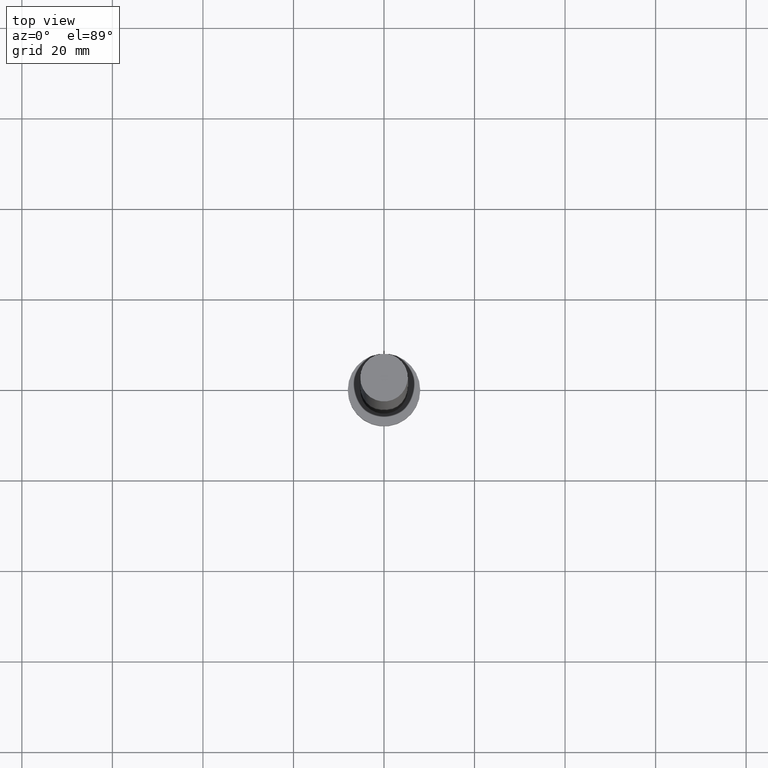
[diagram: clean part render]
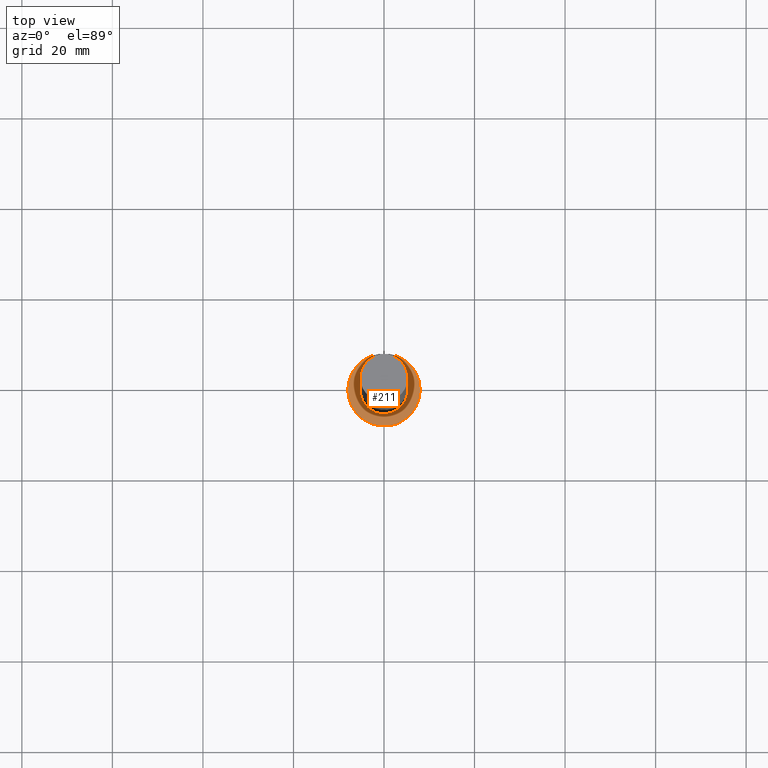
[diagram: same view with one face highlighted and labeled with its STEP entity id]
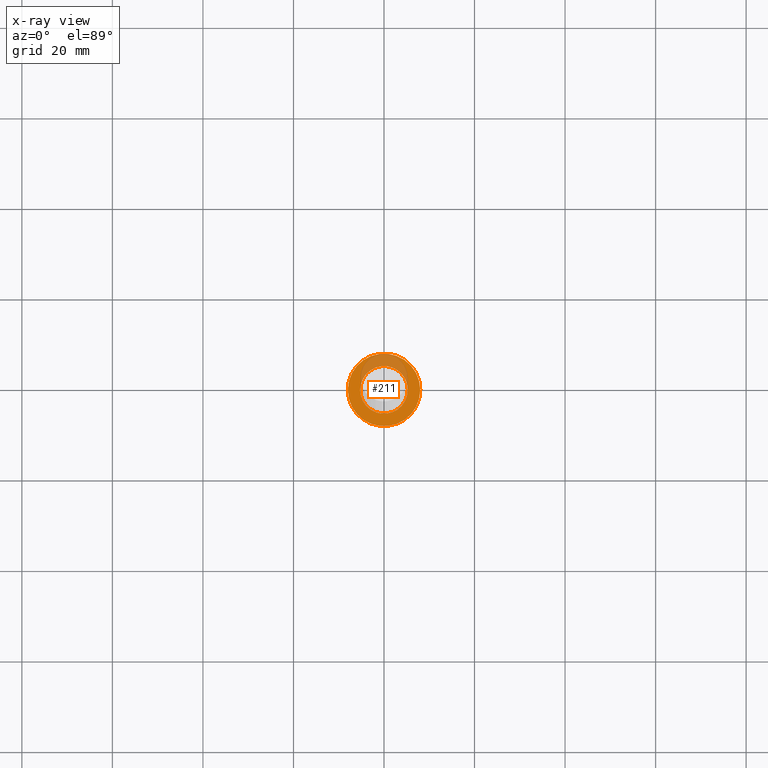
[diagram: x-ray of the same camera — body ghosted, the highlighted face saturated]
A machine part, top view. The second image highlights one B-rep face of the part: STEP entity #211.
The next image is the same camera in x-ray: the body ghosted, the highlighted face saturated — about 25% of this face is hidden behind the body in this view.
In plain terms, the highlighted planar face has unit normal (0, 0, 1).
Its self-contained STEP definition (entity closure, byte-faithful):
#2 = CARTESIAN_POINT ( 'NONE',  ( 8.000000000000000000, 9.797174393178825657E-16, 5.000000000000000000 ) ) ;
#10 = DIRECTION ( 'NONE',  ( 1.000000000000000000, 0.000000000000000000, -0.000000000000000000 ) ) ;
#11 = DIRECTION ( 'NONE',  ( 0.000000000000000000, 0.000000000000000000, 1.000000000000000000 ) ) ;
#15 = CIRCLE ( 'NONE', #152, 8.000000000000000000 ) ;
#22 = FACE_OUTER_BOUND ( 'NONE', #128, .T. ) ;
#27 = CIRCLE ( 'NONE', #181, 5.250000000000000888 ) ;
#28 = EDGE_CURVE ( 'NONE', #56, #54, #27, .T. ) ;
#46 = ORIENTED_EDGE ( 'NONE', *, *, #182, .T. ) ;
#47 = CARTESIAN_POINT ( 'NONE',  ( 0.000000000000000000, 0.000000000000000000, 5.000000000000000000 ) ) ;
#50 = AXIS2_PLACEMENT_3D ( 'NONE', #47, #11, #70 ) ;
#52 = DIRECTION ( 'NONE',  ( 1.000000000000000000, 0.000000000000000000, 0.000000000000000000 ) ) ;
#54 = VERTEX_POINT ( 'NONE', #219 ) ;
#56 = VERTEX_POINT ( 'NONE', #161 ) ;
#62 = ORIENTED_EDGE ( 'NONE', *, *, #82, .T. ) ;
#63 = DIRECTION ( 'NONE',  ( 0.000000000000000000, 0.000000000000000000, 1.000000000000000000 ) ) ;
#65 = VERTEX_POINT ( 'NONE', #2 ) ;
#70 = DIRECTION ( 'NONE',  ( 1.000000000000000000, 0.000000000000000000, 0.000000000000000000 ) ) ;
#82 = EDGE_CURVE ( 'NONE', #249, #65, #15, .T. ) ;
#83 = DIRECTION ( 'NONE',  ( 1.000000000000000000, 0.000000000000000000, 0.000000000000000000 ) ) ;
#86 = DIRECTION ( 'NONE',  ( 0.000000000000000000, 0.000000000000000000, 1.000000000000000000 ) ) ;
#89 = PLANE ( 'NONE',  #244 ) ;
#100 = DIRECTION ( 'NONE',  ( 1.000000000000000000, 0.000000000000000000, 0.000000000000000000 ) ) ;
#105 = CIRCLE ( 'NONE', #50, 5.250000000000000888 ) ;
#121 = CARTESIAN_POINT ( 'NONE',  ( 0.000000000000000000, 0.000000000000000000, 5.000000000000000000 ) ) ;
#126 = ORIENTED_EDGE ( 'NONE', *, *, #146, .F. ) ;
#128 = EDGE_LOOP ( 'NONE', ( #62, #46 ) ) ;
#135 = EDGE_LOOP ( 'NONE', ( #214, #126 ) ) ;
#138 = AXIS2_PLACEMENT_3D ( 'NONE', #121, #246, #52 ) ;
#146 = EDGE_CURVE ( 'NONE', #54, #56, #105, .T. ) ;
#152 = AXIS2_PLACEMENT_3D ( 'NONE', #239, #86, #100 ) ;
#161 = CARTESIAN_POINT ( 'NONE',  ( -5.250000000000000888, 0.000000000000000000, 5.000000000000000000 ) ) ;
#181 = AXIS2_PLACEMENT_3D ( 'NONE', #218, #63, #83 ) ;
#182 = EDGE_CURVE ( 'NONE', #65, #249, #253, .T. ) ;
#185 = CARTESIAN_POINT ( 'NONE',  ( -8.000000000000000000, 0.000000000000000000, 5.000000000000000000 ) ) ;
#187 = CARTESIAN_POINT ( 'NONE',  ( 0.000000000000000000, 0.000000000000000000, 5.000000000000000000 ) ) ;
#211 = ADVANCED_FACE ( 'NONE', ( #222, #22 ), #89, .T. ) ;
#214 = ORIENTED_EDGE ( 'NONE', *, *, #28, .F. ) ;
#218 = CARTESIAN_POINT ( 'NONE',  ( 0.000000000000000000, 0.000000000000000000, 5.000000000000000000 ) ) ;
#219 = CARTESIAN_POINT ( 'NONE',  ( 5.250000000000000888, 6.429395695523605139E-16, 5.000000000000000000 ) ) ;
#221 = DIRECTION ( 'NONE',  ( 0.000000000000000000, 0.000000000000000000, 1.000000000000000000 ) ) ;
#222 = FACE_BOUND ( 'NONE', #135, .T. ) ;
#239 = CARTESIAN_POINT ( 'NONE',  ( 0.000000000000000000, 0.000000000000000000, 5.000000000000000000 ) ) ;
#244 = AXIS2_PLACEMENT_3D ( 'NONE', #187, #221, #10 ) ;
#246 = DIRECTION ( 'NONE',  ( 0.000000000000000000, 0.000000000000000000, 1.000000000000000000 ) ) ;
#249 = VERTEX_POINT ( 'NONE', #185 ) ;
#253 = CIRCLE ( 'NONE', #138, 8.000000000000000000 ) ;